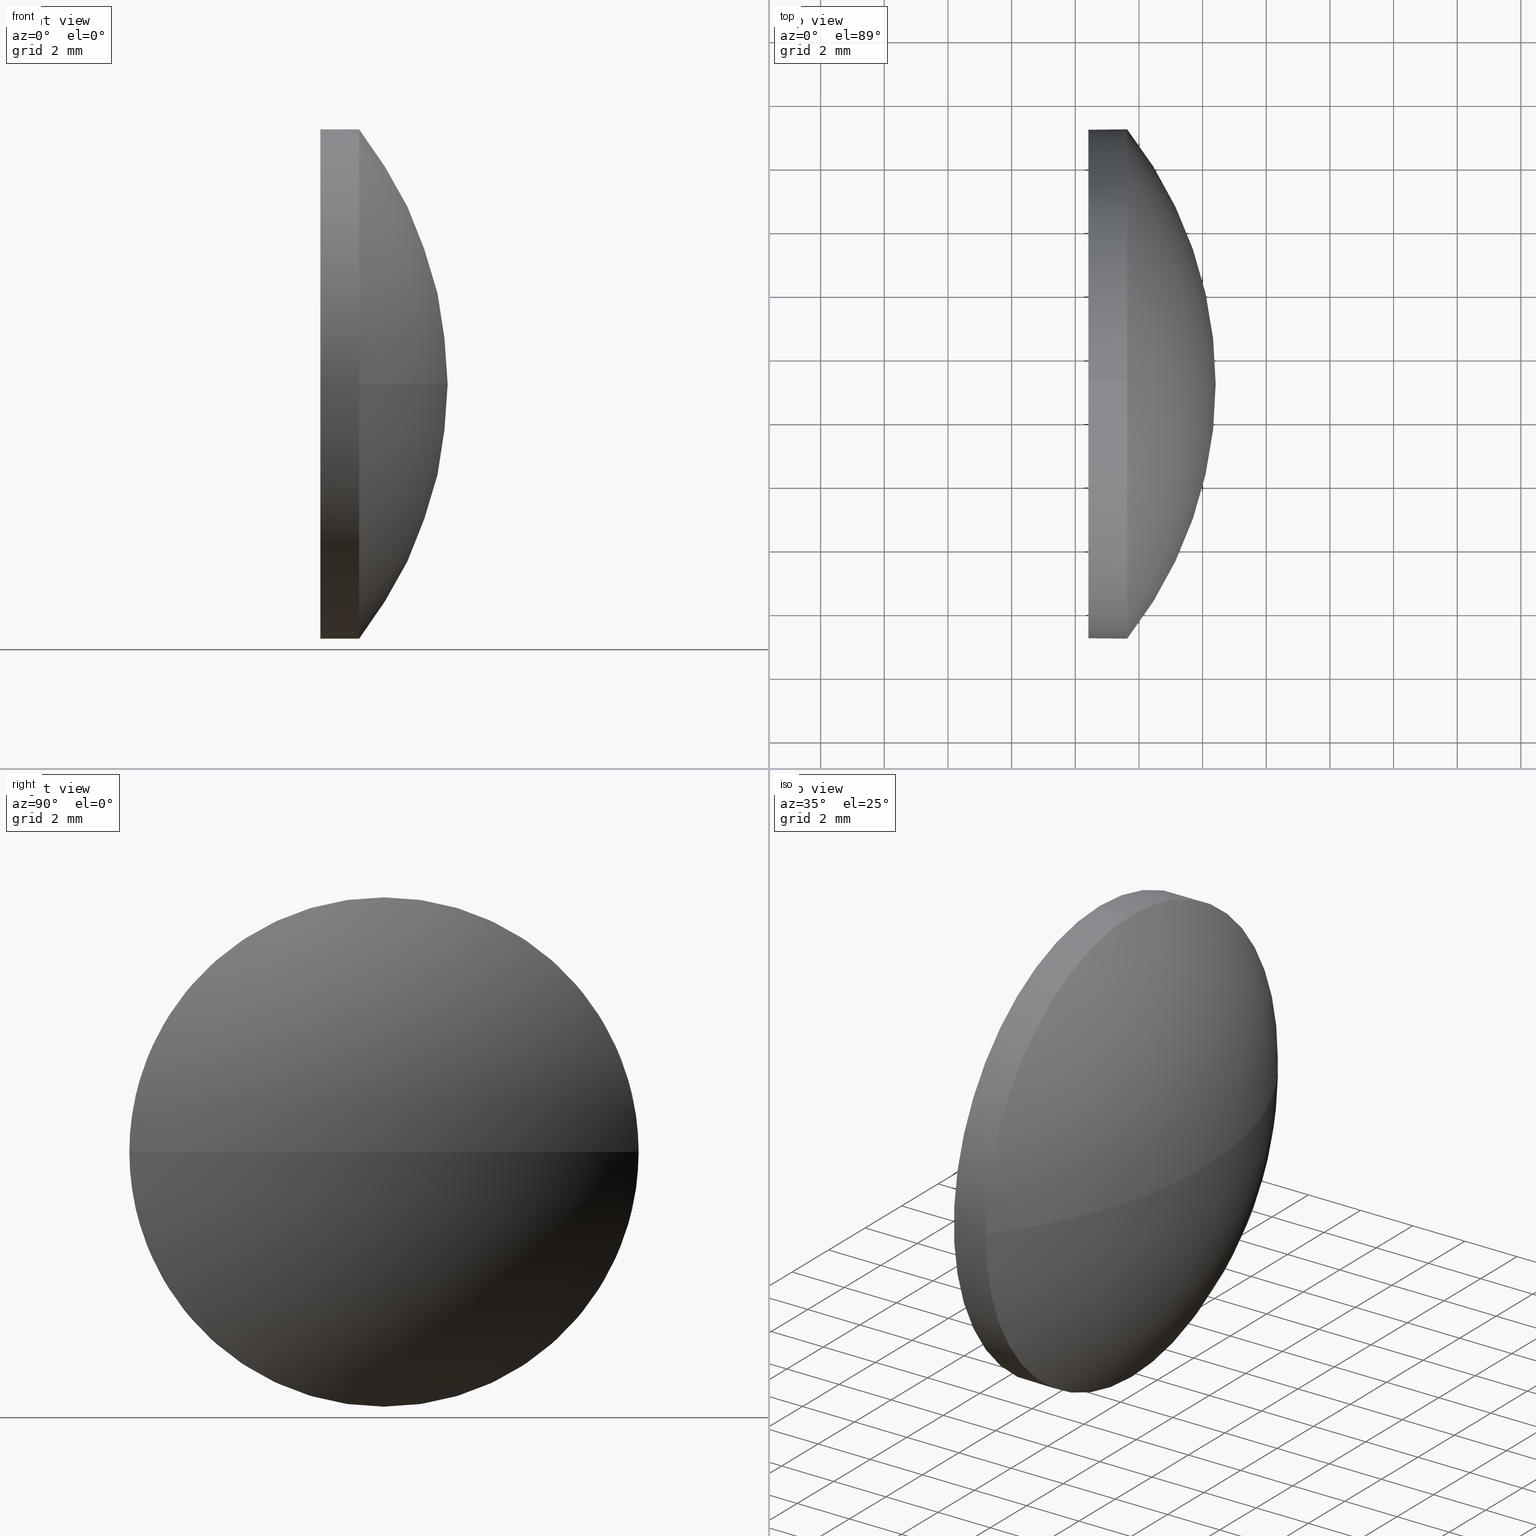
[diagram: canonical four-view strip — front | top / right | iso, engineering-drawing reading convention]
A machine part, canonical four-view strip (front | top / right | iso — engineering-drawing reading convention). The complete STEP part file that produces these views, byte-faithful:
ISO-10303-21;
HEADER;
FILE_DESCRIPTION (( 'STEP AP214' ),
    '1' );
FILE_NAME ('100112.STEP',
    '2019-05-14T01:59:37',
    ( '' ),
    ( '' ),
    'SwSTEP 2.0',
    'SolidWorks 2016',
    '' );
FILE_SCHEMA (( 'AUTOMOTIVE_DESIGN' ));
ENDSEC;

DATA;
#1 = CARTESIAN_POINT ( 'NONE',  ( 477.6308959545011100, 109.1334144669234500, 0.0000000000000000000 ) ) ;
#2 = STYLED_ITEM ( 'NONE', ( #46 ), #60 ) ;
#3 = APPLICATION_CONTEXT ( 'automotive_design' ) ;
#4 = VERTEX_POINT ( 'NONE', #48 ) ;
#5 = CARTESIAN_POINT ( 'NONE',  ( 467.5101045875945800, 109.1334144669234400, 0.0000000000000000000 ) ) ;
#6 = AXIS2_PLACEMENT_3D ( 'NONE', #5, #120, #107 ) ;
#7 = MANIFOLD_SOLID_BREP ( '��ת1', #15 ) ;
#8 = DIRECTION ( 'NONE',  ( -1.000000000000000000, -0.0000000000000000000, -0.0000000000000000000 ) ) ;
#9 = ORIENTED_EDGE ( 'NONE', *, *, #53, .F. ) ;
#10 = DIRECTION ( 'NONE',  ( -1.000000000000000000, -0.0000000000000000000, -0.0000000000000000000 ) ) ;
#11 = SURFACE_STYLE_USAGE ( .BOTH. , #145 ) ;
#12 = PRODUCT ( '100112', '100112', '', ( #137 ) ) ;
#13 = DIRECTION ( 'NONE',  ( 1.000000000000000000, 0.0000000000000000000, 0.0000000000000000000 ) ) ;
#14 = EDGE_CURVE ( 'NONE', #121, #43, #148, .T. ) ;
#15 = CLOSED_SHELL ( 'NONE', ( #82, #179, #27, #25, #125 ) ) ;
#16 = CARTESIAN_POINT ( 'NONE',  ( 477.6308959545011100, 109.1334144669234500, 0.0000000000000000000 ) ) ;
#17 = APPLICATION_CONTEXT ( 'automotive_design' ) ;
#18 = FILL_AREA_STYLE ('',( #186 ) ) ;
#19 = FACE_OUTER_BOUND ( 'NONE', #144, .T. ) ;
#20 = EDGE_CURVE ( 'NONE', #134, #43, #52, .T. ) ;
#21 = ORIENTED_EDGE ( 'NONE', *, *, #122, .T. ) ;
#22 = ORIENTED_EDGE ( 'NONE', *, *, #115, .T. ) ;
#23 = CARTESIAN_POINT ( 'NONE',  ( 476.4108959545010300, 109.1334144669234500, 0.0000000000000000000 ) ) ;
#24 = CARTESIAN_POINT ( 'NONE',  ( 474.4880792496553600, 109.1334144669234500, -8.000000000000007100 ) ) ;
#25 = ADVANCED_FACE ( 'NONE', ( #59 ), #172, .T. ) ;
#26 = PRESENTATION_LAYER_ASSIGNMENT (  '', '', ( #2 ) ) ;
#27 = ADVANCED_FACE ( 'NONE', ( #19 ), #177, .T. ) ;
#28 = CIRCLE ( 'NONE', #112, 8.000000000000007100 ) ;
#29 = ORIENTED_EDGE ( 'NONE', *, *, #20, .F. ) ;
#30 = AXIS2_PLACEMENT_3D ( 'NONE', #16, #150, #109 ) ;
#31 = UNCERTAINTY_MEASURE_WITH_UNIT (LENGTH_MEASURE( 1.000000000000000100E-005 ), #58, 'distance_accuracy_value', 'NONE');
#32 = ORIENTED_EDGE ( 'NONE', *, *, #98, .F. ) ;
#33 = ORIENTED_EDGE ( 'NONE', *, *, #92, .F. ) ;
#34 = DIRECTION ( 'NONE',  ( 1.000000000000000000, 0.0000000000000000000, 0.0000000000000000000 ) ) ;
#35 = CARTESIAN_POINT ( 'NONE',  ( 480.4108959545010900, 109.1334144669234400, 0.0000000000000000000 ) ) ;
#36 = AXIS2_PLACEMENT_3D ( 'NONE', #175, #44, #86 ) ;
#37 = ORIENTED_EDGE ( 'NONE', *, *, #66, .T. ) ;
#38 =( NAMED_UNIT ( * ) SI_UNIT ( $, .STERADIAN. ) SOLID_ANGLE_UNIT ( ) );
#39 = FILL_AREA_STYLE ('',( #129 ) ) ;
#40 = DIRECTION ( 'NONE',  ( 0.0000000000000000000, 1.000000000000000000, 0.0000000000000000000 ) ) ;
#41 = CIRCLE ( 'NONE', #136, 8.000000000000007100 ) ;
#42 = DIRECTION ( 'NONE',  ( 0.0000000000000000000, 0.0000000000000000000, 1.000000000000000000 ) ) ;
#43 = VERTEX_POINT ( 'NONE', #130 ) ;
#44 = DIRECTION ( 'NONE',  ( 0.0000000000000000000, 1.224646799147353200E-016, -1.000000000000000000 ) ) ;
#45 = CARTESIAN_POINT ( 'NONE',  ( 476.4108959545010300, 109.1334144669234500, 8.000000000000007100 ) ) ;
#46 = PRESENTATION_STYLE_ASSIGNMENT (( #72 ) ) ;
#47 = ORIENTED_EDGE ( 'NONE', *, *, #14, .F. ) ;
#48 = CARTESIAN_POINT ( 'NONE',  ( 477.6308959545011100, 101.1334144669234400, -9.797174393178839500E-016 ) ) ;
#49 = CARTESIAN_POINT ( 'NONE',  ( 477.6308959545011100, 109.1334144669234500, -8.000000000000007100 ) ) ;
#50 = MECHANICAL_DESIGN_GEOMETRIC_PRESENTATION_REPRESENTATION (  '', ( #2 ), #126 ) ;
#51 = CYLINDRICAL_SURFACE ( 'NONE', #158, 8.000000000000007100 ) ;
#52 = CIRCLE ( 'NONE', #135, 8.000000000000007100 ) ;
#53 = EDGE_CURVE ( 'NONE', #104, #134, #131, .T. ) ;
#54 = DIRECTION ( 'NONE',  ( 1.000000000000000000, 0.0000000000000000000, 0.0000000000000000000 ) ) ;
#55 = UNCERTAINTY_MEASURE_WITH_UNIT (LENGTH_MEASURE( 1.000000000000000100E-005 ), #88, 'distance_accuracy_value', 'NONE');
#56 = EDGE_CURVE ( 'NONE', #104, #84, #146, .T. ) ;
#57 = CARTESIAN_POINT ( 'NONE',  ( 0.0000000000000000000, 0.0000000000000000000, 0.0000000000000000000 ) ) ;
#58 =( LENGTH_UNIT ( ) NAMED_UNIT ( * ) SI_UNIT ( .MILLI., .METRE. ) );
#59 = FACE_OUTER_BOUND ( 'NONE', #68, .T. ) ;
#60 = ADVANCED_BREP_SHAPE_REPRESENTATION ( '100112', ( #7, #160 ), #147 ) ;
#61 = SURFACE_STYLE_FILL_AREA ( #18 ) ;
#62 = CARTESIAN_POINT ( 'NONE',  ( 474.4880792496553600, 109.1334144669234500, 0.0000000000000000000 ) ) ;
#63 = ORIENTED_EDGE ( 'NONE', *, *, #53, .T. ) ;
#64 =( NAMED_UNIT ( * ) PLANE_ANGLE_UNIT ( ) SI_UNIT ( $, .RADIAN. ) );
#65 = DIRECTION ( 'NONE',  ( -1.000000000000000000, -0.0000000000000000000, -0.0000000000000000000 ) ) ;
#66 = EDGE_CURVE ( 'NONE', #43, #134, #41, .T. ) ;
#67 = ORIENTED_EDGE ( 'NONE', *, *, #92, .T. ) ;
#68 = EDGE_LOOP ( 'NONE', ( #47, #21, #67, #63, #152 ) ) ;
#69 = CIRCLE ( 'NONE', #167, 8.000000000000007100 ) ;
#70 = ORIENTED_EDGE ( 'NONE', *, *, #14, .T. ) ;
#71 = PRODUCT_DEFINITION_FORMATION_WITH_SPECIFIED_SOURCE ( '�κ�', '', #12, .NOT_KNOWN. ) ;
#72 = SURFACE_STYLE_USAGE ( .BOTH. , #162 ) ;
#73 =( NAMED_UNIT ( * ) PLANE_ANGLE_UNIT ( ) SI_UNIT ( $, .RADIAN. ) );
#74 = ORIENTED_EDGE ( 'NONE', *, *, #180, .F. ) ;
#75 = PRODUCT_DEFINITION_SHAPE ( 'NONE', 'NONE',  #154 ) ;
#76 = COLOUR_RGB ( '',1.000000000000000000, 1.000000000000000000, 1.000000000000000000 ) ;
#77 = CARTESIAN_POINT ( 'NONE',  ( 474.4880792496553600, 109.1334144669234500, 8.000000000000007100 ) ) ;
#78 = PRESENTATION_STYLE_ASSIGNMENT (( #11 ) ) ;
#79 = DIRECTION ( 'NONE',  ( -1.000000000000000000, -0.0000000000000000000, -0.0000000000000000000 ) ) ;
#80 = DIRECTION ( 'NONE',  ( 0.0000000000000000000, 0.0000000000000000000, 1.000000000000000000 ) ) ;
#81 = FACE_OUTER_BOUND ( 'NONE', #127, .T. ) ;
#82 = ADVANCED_FACE ( 'NONE', ( #81 ), #51, .T. ) ;
#83 = EDGE_LOOP ( 'NONE', ( #32, #22, #114, #74 ) ) ;
#84 = VERTEX_POINT ( 'NONE', #133 ) ;
#85 = CIRCLE ( 'NONE', #36, 12.90079136690652800 ) ;
#86 = DIRECTION ( 'NONE',  ( 0.0000000000000000000, 1.000000000000000000, 1.224646799147353200E-016 ) ) ;
#87 = VECTOR ( 'NONE', #157, 1000.000000000000000 ) ;
#88 =( LENGTH_UNIT ( ) NAMED_UNIT ( * ) SI_UNIT ( .MILLI., .METRE. ) );
#89 = STYLED_ITEM ( 'NONE', ( #78 ), #7 ) ;
#90 = CARTESIAN_POINT ( 'NONE',  ( 476.4108959545010300, 109.1334144669234500, 0.0000000000000000000 ) ) ;
#91 = FACE_OUTER_BOUND ( 'NONE', #161, .T. ) ;
#92 = EDGE_CURVE ( 'NONE', #4, #104, #69, .T. ) ;
#93 = UNCERTAINTY_MEASURE_WITH_UNIT (LENGTH_MEASURE( 1.000000000000000100E-005 ), #182, 'distance_accuracy_value', 'NONE');
#94 = CARTESIAN_POINT ( 'NONE',  ( 477.6308959545011100, 109.1334144669234500, 0.0000000000000000000 ) ) ;
#95 = DIRECTION ( 'NONE',  ( 0.0000000000000000000, 0.0000000000000000000, 1.000000000000000000 ) ) ;
#96 = CARTESIAN_POINT ( 'NONE',  ( 476.4108959545010300, 109.1334144669234500, 0.0000000000000000000 ) ) ;
#97 = DIRECTION ( 'NONE',  ( 0.0000000000000000000, 0.0000000000000000000, 1.000000000000000000 ) ) ;
#98 = EDGE_CURVE ( 'NONE', #171, #84, #110, .T. ) ;
#99 = DIRECTION ( 'NONE',  ( -1.000000000000000000, -0.0000000000000000000, -0.0000000000000000000 ) ) ;
#100 = COLOUR_RGB ( '',1.000000000000000000, 1.000000000000000000, 1.000000000000000000 ) ;
#101 = MECHANICAL_DESIGN_GEOMETRIC_PRESENTATION_REPRESENTATION (  '', ( #89 ), #132 ) ;
#102 = ORIENTED_EDGE ( 'NONE', *, *, #56, .F. ) ;
#103 = DIRECTION ( 'NONE',  ( 0.0000000000000000000, 0.0000000000000000000, 1.000000000000000000 ) ) ;
#104 = VERTEX_POINT ( 'NONE', #169 ) ;
#105 = AXIS2_PLACEMENT_3D ( 'NONE', #156, #166, #80 ) ;
#106 = ORIENTED_EDGE ( 'NONE', *, *, #98, .T. ) ;
#107 = DIRECTION ( 'NONE',  ( 0.0000000000000000000, 1.000000000000000000, 0.0000000000000000000 ) ) ;
#108 = APPLICATION_PROTOCOL_DEFINITION ( 'draft international standard', 'automotive_design', 1998, #3 ) ;
#109 = DIRECTION ( 'NONE',  ( 0.0000000000000000000, 0.0000000000000000000, 1.000000000000000000 ) ) ;
#110 = CIRCLE ( 'NONE', #141, 12.90079136690652800 ) ;
#111 = DIRECTION ( 'NONE',  ( 0.0000000000000000000, 0.0000000000000000000, 1.000000000000000000 ) ) ;
#112 = AXIS2_PLACEMENT_3D ( 'NONE', #1, #176, #139 ) ;
#113 = SPHERICAL_SURFACE ( 'NONE', #6, 12.90079136690652800 ) ;
#114 = ORIENTED_EDGE ( 'NONE', *, *, #122, .F. ) ;
#115 = EDGE_CURVE ( 'NONE', #171, #4, #85, .T. ) ;
#116 = PRODUCT_DEFINITION_CONTEXT ( 'detailed design', #17, 'design' ) ;
#117 =( NAMED_UNIT ( * ) SI_UNIT ( $, .STERADIAN. ) SOLID_ANGLE_UNIT ( ) );
#118 =( NAMED_UNIT ( * ) PLANE_ANGLE_UNIT ( ) SI_UNIT ( $, .RADIAN. ) );
#119 = SHAPE_DEFINITION_REPRESENTATION ( #75, #60 ) ;
#120 = DIRECTION ( 'NONE',  ( -0.0000000000000000000, 0.0000000000000000000, -1.000000000000000000 ) ) ;
#121 = VERTEX_POINT ( 'NONE', #49 ) ;
#122 = EDGE_CURVE ( 'NONE', #121, #4, #28, .T. ) ;
#123 = APPLICATION_PROTOCOL_DEFINITION ( 'draft international standard', 'automotive_design', 1998, #17 ) ;
#124 = AXIS2_PLACEMENT_3D ( 'NONE', #181, #142, #40 ) ;
#125 = ADVANCED_FACE ( 'NONE', ( #91 ), #151, .F. ) ;
#126 =( GEOMETRIC_REPRESENTATION_CONTEXT ( 3 ) GLOBAL_UNCERTAINTY_ASSIGNED_CONTEXT ( ( #55 ) ) GLOBAL_UNIT_ASSIGNED_CONTEXT ( ( #88, #118, #174 ) ) REPRESENTATION_CONTEXT ( 'NONE', 'WORKASPACE' ) );
#127 = EDGE_LOOP ( 'NONE', ( #164, #70, #29, #9, #140 ) ) ;
#128 = DIRECTION ( 'NONE',  ( -1.000000000000000000, -0.0000000000000000000, -0.0000000000000000000 ) ) ;
#129 = FILL_AREA_STYLE_COLOUR ( '', #100 ) ;
#130 = CARTESIAN_POINT ( 'NONE',  ( 476.4108959545010300, 109.1334144669234500, -8.000000000000007100 ) ) ;
#131 = LINE ( 'NONE', #77, #87 ) ;
#132 =( GEOMETRIC_REPRESENTATION_CONTEXT ( 3 ) GLOBAL_UNCERTAINTY_ASSIGNED_CONTEXT ( ( #93 ) ) GLOBAL_UNIT_ASSIGNED_CONTEXT ( ( #182, #64, #38 ) ) REPRESENTATION_CONTEXT ( 'NONE', 'WORKASPACE' ) );
#133 = CARTESIAN_POINT ( 'NONE',  ( 477.6308959545011100, 117.1334144669234700, 0.0000000000000000000 ) ) ;
#134 = VERTEX_POINT ( 'NONE', #45 ) ;
#135 = AXIS2_PLACEMENT_3D ( 'NONE', #96, #10, #155 ) ;
#136 = AXIS2_PLACEMENT_3D ( 'NONE', #23, #128, #95 ) ;
#137 = PRODUCT_CONTEXT ( 'NONE', #3, 'mechanical' ) ;
#138 = FACE_OUTER_BOUND ( 'NONE', #83, .T. ) ;
#139 = DIRECTION ( 'NONE',  ( 0.0000000000000000000, 0.0000000000000000000, 1.000000000000000000 ) ) ;
#140 = ORIENTED_EDGE ( 'NONE', *, *, #56, .T. ) ;
#141 = AXIS2_PLACEMENT_3D ( 'NONE', #159, #183, #13 ) ;
#142 = DIRECTION ( 'NONE',  ( -0.0000000000000000000, 0.0000000000000000000, -1.000000000000000000 ) ) ;
#143 = CIRCLE ( 'NONE', #30, 8.000000000000007100 ) ;
#144 = EDGE_LOOP ( 'NONE', ( #149, #106, #102, #33 ) ) ;
#145 = SURFACE_SIDE_STYLE ('',( #165 ) ) ;
#146 = CIRCLE ( 'NONE', #163, 8.000000000000007100 ) ;
#147 =( GEOMETRIC_REPRESENTATION_CONTEXT ( 3 ) GLOBAL_UNCERTAINTY_ASSIGNED_CONTEXT ( ( #31 ) ) GLOBAL_UNIT_ASSIGNED_CONTEXT ( ( #58, #73, #117 ) ) REPRESENTATION_CONTEXT ( 'NONE', 'WORKASPACE' ) );
#148 = LINE ( 'NONE', #24, #185 ) ;
#149 = ORIENTED_EDGE ( 'NONE', *, *, #115, .F. ) ;
#150 = DIRECTION ( 'NONE',  ( -1.000000000000000000, -0.0000000000000000000, -0.0000000000000000000 ) ) ;
#151 = PLANE ( 'NONE',  #173 ) ;
#152 = ORIENTED_EDGE ( 'NONE', *, *, #66, .F. ) ;
#153 = DIRECTION ( 'NONE',  ( 0.0000000000000000000, 0.0000000000000000000, -1.000000000000000000 ) ) ;
#154 = PRODUCT_DEFINITION ( 'δ֪', '', #71, #116 ) ;
#155 = DIRECTION ( 'NONE',  ( 0.0000000000000000000, 0.0000000000000000000, 1.000000000000000000 ) ) ;
#156 = CARTESIAN_POINT ( 'NONE',  ( 474.4880792496553600, 109.1334144669234500, 0.0000000000000000000 ) ) ;
#157 = DIRECTION ( 'NONE',  ( -1.000000000000000000, -0.0000000000000000000, -0.0000000000000000000 ) ) ;
#158 = AXIS2_PLACEMENT_3D ( 'NONE', #62, #79, #97 ) ;
#159 = CARTESIAN_POINT ( 'NONE',  ( 467.5101045875945800, 109.1334144669234400, 0.0000000000000000000 ) ) ;
#160 = AXIS2_PLACEMENT_3D ( 'NONE', #57, #103, #54 ) ;
#161 = EDGE_LOOP ( 'NONE', ( #178, #37 ) ) ;
#162 = SURFACE_SIDE_STYLE ('',( #61 ) ) ;
#163 = AXIS2_PLACEMENT_3D ( 'NONE', #94, #8, #111 ) ;
#164 = ORIENTED_EDGE ( 'NONE', *, *, #180, .T. ) ;
#165 = SURFACE_STYLE_FILL_AREA ( #39 ) ;
#166 = DIRECTION ( 'NONE',  ( -1.000000000000000000, -0.0000000000000000000, -0.0000000000000000000 ) ) ;
#167 = AXIS2_PLACEMENT_3D ( 'NONE', #168, #99, #42 ) ;
#168 = CARTESIAN_POINT ( 'NONE',  ( 477.6308959545011100, 109.1334144669234500, 0.0000000000000000000 ) ) ;
#169 = CARTESIAN_POINT ( 'NONE',  ( 477.6308959545011100, 109.1334144669234500, 8.000000000000007100 ) ) ;
#170 = PRESENTATION_LAYER_ASSIGNMENT (  '', '', ( #89 ) ) ;
#171 = VERTEX_POINT ( 'NONE', #35 ) ;
#172 = CYLINDRICAL_SURFACE ( 'NONE', #105, 8.000000000000007100 ) ;
#173 = AXIS2_PLACEMENT_3D ( 'NONE', #90, #34, #153 ) ;
#174 =( NAMED_UNIT ( * ) SI_UNIT ( $, .STERADIAN. ) SOLID_ANGLE_UNIT ( ) );
#175 = CARTESIAN_POINT ( 'NONE',  ( 467.5101045875945800, 109.1334144669234400, 0.0000000000000000000 ) ) ;
#176 = DIRECTION ( 'NONE',  ( -1.000000000000000000, -0.0000000000000000000, -0.0000000000000000000 ) ) ;
#177 = SPHERICAL_SURFACE ( 'NONE', #124, 12.90079136690652800 ) ;
#178 = ORIENTED_EDGE ( 'NONE', *, *, #20, .T. ) ;
#179 = ADVANCED_FACE ( 'NONE', ( #138 ), #113, .T. ) ;
#180 = EDGE_CURVE ( 'NONE', #84, #121, #143, .T. ) ;
#181 = CARTESIAN_POINT ( 'NONE',  ( 467.5101045875945800, 109.1334144669234400, 0.0000000000000000000 ) ) ;
#182 =( LENGTH_UNIT ( ) NAMED_UNIT ( * ) SI_UNIT ( .MILLI., .METRE. ) );
#183 = DIRECTION ( 'NONE',  ( -0.0000000000000000000, 0.0000000000000000000, 1.000000000000000000 ) ) ;
#184 = PRODUCT_RELATED_PRODUCT_CATEGORY ( 'part', '', ( #12 ) ) ;
#185 = VECTOR ( 'NONE', #65, 1000.000000000000000 ) ;
#186 = FILL_AREA_STYLE_COLOUR ( '', #76 ) ;
ENDSEC;
END-ISO-10303-21;
